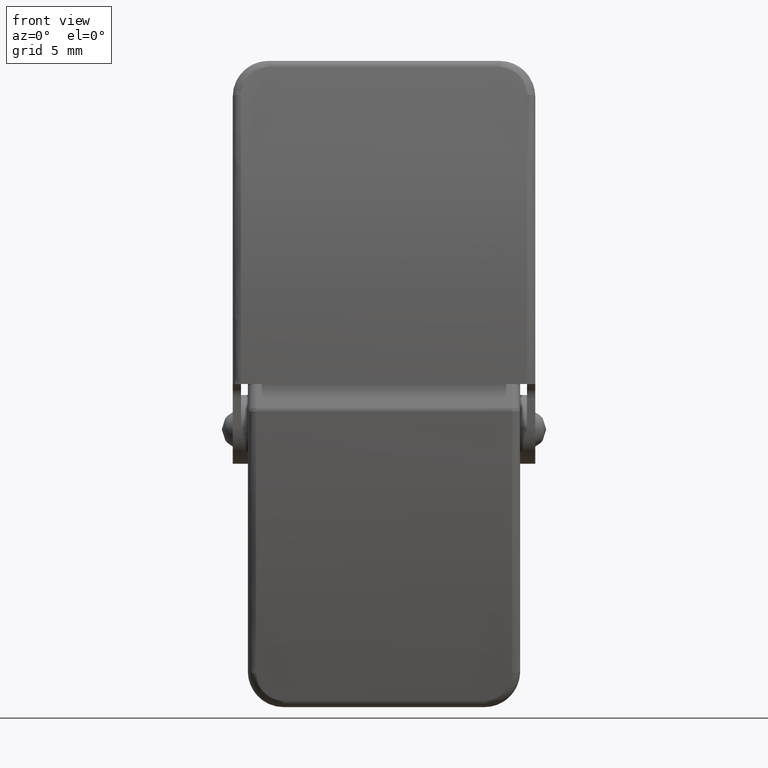
[diagram: clean part render]
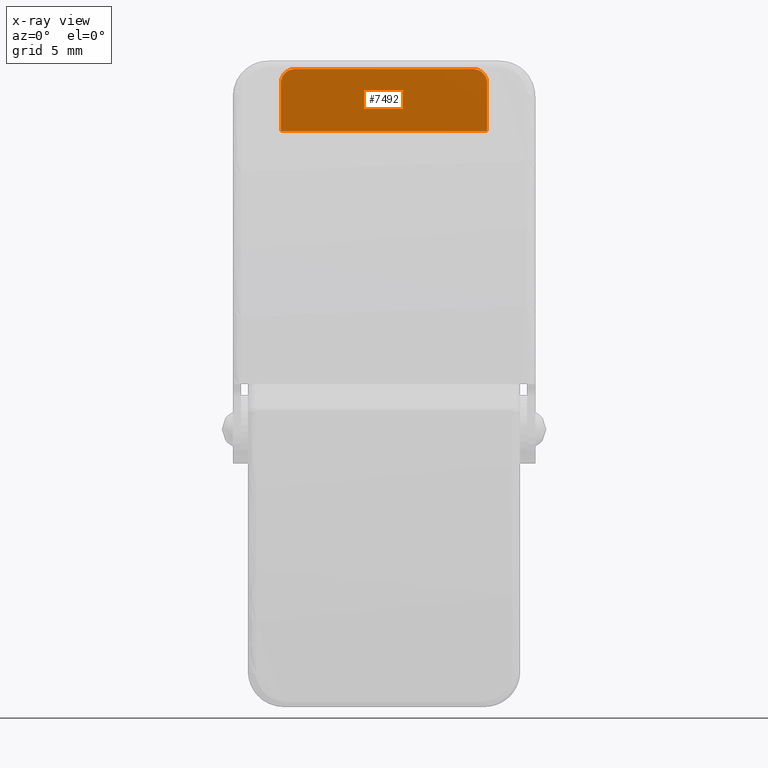
[diagram: x-ray — body ghosted, one internal face saturated and labeled with its STEP entity id]
A machine part, front view, then the same camera in x-ray: the body is ghosted and one INTERNAL B-rep face — a face not visible from any outside direction — is saturated and labeled: STEP entity #7492.
In plain terms, the highlighted face is a freeform B-spline surface patch.
Its self-contained STEP definition (entity closure, byte-faithful):
#6909=CARTESIAN_POINT('',(47.500000000023903,21.999999999976101,29.200000000028901));
#6910=VERTEX_POINT('',#6909);
#6911=CARTESIAN_POINT('',(46.500000000023903,21.999999999975849,30.200000000028901));
#6912=VERTEX_POINT('',#6911);
#6913=CARTESIAN_POINT('',(47.500000000023903,21.999999999976101,29.200000000028901));
#6914=CARTESIAN_POINT('',(47.500000000023903,21.999999999975834,30.200000000028897));
#6915=CARTESIAN_POINT('',(46.500000000023903,21.999999999975842,30.200000000028901));
#6923=(BOUNDED_CURVE()B_SPLINE_CURVE(2,(#6913,#6914,#6915),.UNSPECIFIED.,.F.,.U.)CURVE()GEOMETRIC_REPRESENTATION_ITEM()QUASI_UNIFORM_CURVE()RATIONAL_B_SPLINE_CURVE((1.0,0.707106781186548,1.0))REPRESENTATION_ITEM(''));
#6924=EDGE_CURVE('',#6910,#6912,#6923,.T.);
#6970=CARTESIAN_POINT('',(33.500000000023853,21.999999999975849,30.200000000028901));
#6971=VERTEX_POINT('',#6970);
#6972=CARTESIAN_POINT('',(32.500000000023952,21.999999999976101,29.200000000028901));
#6973=VERTEX_POINT('',#6972);
#6974=CARTESIAN_POINT('',(33.500000000023903,21.999999999975842,30.200000000028901));
#6975=CARTESIAN_POINT('',(32.500000000023888,21.999999999975834,30.200000000028897));
#6976=CARTESIAN_POINT('',(32.500000000023903,21.999999999976101,29.200000000028901));
#6984=(BOUNDED_CURVE()B_SPLINE_CURVE(2,(#6974,#6975,#6976),.UNSPECIFIED.,.F.,.U.)CURVE()GEOMETRIC_REPRESENTATION_ITEM()QUASI_UNIFORM_CURVE()RATIONAL_B_SPLINE_CURVE((1.0,0.707106781186548,1.0))REPRESENTATION_ITEM(''));
#6985=EDGE_CURVE('',#6971,#6973,#6984,.T.);
#7153=CARTESIAN_POINT('',(47.500000000023903,21.999999999977000,25.700000000029849));
#7154=VERTEX_POINT('',#7153);
#7170=CARTESIAN_POINT('',(32.500000000023952,21.999999999977000,25.700000000029849));
#7171=VERTEX_POINT('',#7170);
#7172=CARTESIAN_POINT('',(32.500000000023952,21.999999999977000,25.700000000029849));
#7173=CARTESIAN_POINT('',(47.500000000023903,21.999999999977000,25.700000000029849));
#7174=QUASI_UNIFORM_CURVE('',1,(#7172,#7173),.UNSPECIFIED.,.F.,.U.);
#7175=EDGE_CURVE('',#7171,#7154,#7174,.T.);
#7285=CARTESIAN_POINT('',(32.500000000023952,21.999999999977000,25.700000000029849));
#7286=CARTESIAN_POINT('',(32.500000000023952,21.999999999976101,29.200000000028901));
#7287=QUASI_UNIFORM_CURVE('',1,(#7285,#7286),.UNSPECIFIED.,.F.,.U.);
#7288=EDGE_CURVE('',#7171,#6973,#7287,.T.);
#7339=CARTESIAN_POINT('',(47.500000000023903,21.999999999977000,25.700000000029849));
#7340=CARTESIAN_POINT('',(47.500000000023903,21.999999999976101,29.200000000028901));
#7341=QUASI_UNIFORM_CURVE('',1,(#7339,#7340),.UNSPECIFIED.,.F.,.U.);
#7342=EDGE_CURVE('',#7154,#6910,#7341,.T.);
#7470=CARTESIAN_POINT('',(46.500000000023903,21.999999999975849,30.200000000028901));
#7471=CARTESIAN_POINT('',(33.500000000023853,21.999999999975849,30.200000000028901));
#7472=QUASI_UNIFORM_CURVE('',1,(#7470,#7471),.UNSPECIFIED.,.F.,.U.);
#7473=EDGE_CURVE('',#6912,#6971,#7472,.T.);
#7479=CARTESIAN_POINT('',(31.750750029096871,21.999999999975770,30.424775745688329));
#7480=CARTESIAN_POINT('',(31.750750029096871,21.999999999977081,25.475225863695840));
#7481=CARTESIAN_POINT('',(48.249250373282337,21.999999999975770,30.424775745688329));
#7482=CARTESIAN_POINT('',(48.249250373282337,21.999999999977081,25.475225863695840));
#7483=B_SPLINE_SURFACE_WITH_KNOTS('',1,1,((#7479,#7481),(#7480,#7482)),.UNSPECIFIED.,.F.,.F.,.U.,(2,2),(2,2),(0.0,4.949549881992486),(0.0,16.498500344185469),.UNSPECIFIED.);
#7484=ORIENTED_EDGE('',*,*,#7473,.T.);
#7485=ORIENTED_EDGE('',*,*,#6985,.T.);
#7486=ORIENTED_EDGE('',*,*,#7288,.F.);
#7487=ORIENTED_EDGE('',*,*,#7175,.T.);
#7488=ORIENTED_EDGE('',*,*,#7342,.T.);
#7489=ORIENTED_EDGE('',*,*,#6924,.T.);
#7490=EDGE_LOOP('',(#7484,#7485,#7486,#7487,#7488,#7489));
#7491=FACE_OUTER_BOUND('',#7490,.T.);
#7492=ADVANCED_FACE('',(#7491),#7483,.T.);